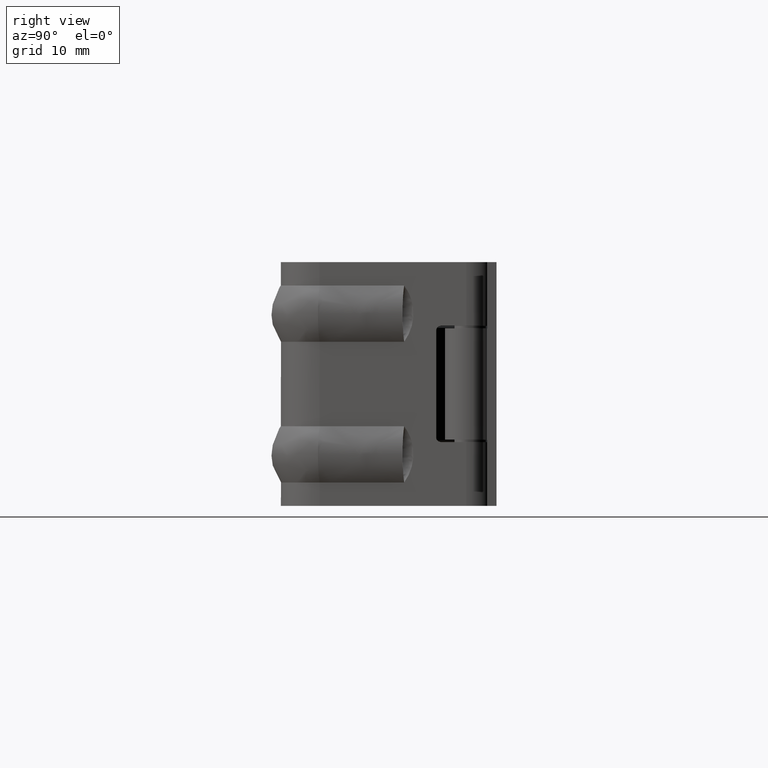
[diagram: clean part render]
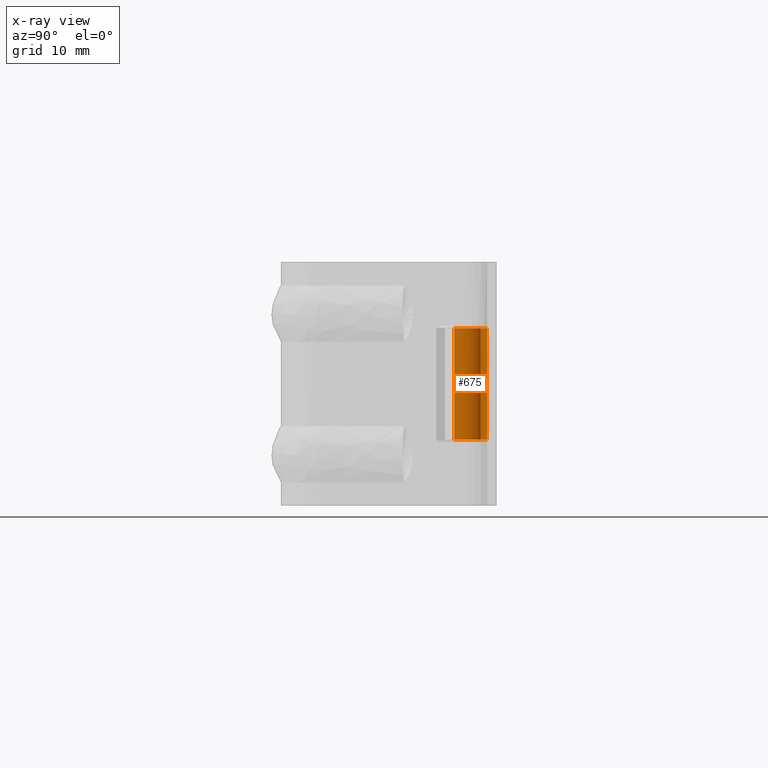
[diagram: x-ray — body ghosted, one internal face saturated and labeled with its STEP entity id]
A machine part, right view, then the same camera in x-ray: the body is ghosted and one INTERNAL B-rep face — a face not visible from any outside direction — is saturated and labeled: STEP entity #675.
In plain terms, the highlighted face is a freeform B-spline surface patch.
Its self-contained STEP definition (entity closure, byte-faithful):
#300=CARTESIAN_POINT('',(1.375561493168372,1.081818181818182,18.950012000000150));
#301=VERTEX_POINT('',#300);
#302=CARTESIAN_POINT('',(0.0,1.750000000000000,18.950012000000150));
#303=VERTEX_POINT('',#302);
#304=CARTESIAN_POINT('',(1.375561493168373,1.081818181818182,18.950012000000150));
#305=CARTESIAN_POINT('',(2.236785801104022,-0.013252149673032,18.950012000000147));
#306=CARTESIAN_POINT('',(1.362646612735052,-1.098041077920899,18.950012000000150));
#307=CARTESIAN_POINT('',(0.488507424366082,-2.182830006168766,18.950012000000147));
#308=CARTESIAN_POINT('',(-0.764630035317140,-1.574115913486332,18.950012000000150));
#309=CARTESIAN_POINT('',(-2.017767495000362,-0.965401820803899,18.950012000000147));
#310=CARTESIAN_POINT('',(-1.705462231859897,0.392299089598051,18.950012000000150));
#311=CARTESIAN_POINT('',(-1.393156968719432,1.750000000000000,18.950012000000147));
#312=CARTESIAN_POINT('',(0.0,1.750000000000000,18.950012000000150));
#320=(BOUNDED_CURVE()B_SPLINE_CURVE(2,(#304,#305,#306,#307,#308,#309,#310,#311,#312),.UNSPECIFIED.,.F.,.U.)B_SPLINE_CURVE_WITH_KNOTS((3,2,2,2,3),(0.0,0.250000000000000,0.500000000000000,0.750000000000000,1.0),.UNSPECIFIED.)CURVE()GEOMETRIC_REPRESENTATION_ITEM()RATIONAL_B_SPLINE_CURVE((1.0,0.782358903682237,1.0,0.782358903682237,1.0,0.782358903682237,1.0,0.782358903682237,1.0))REPRESENTATION_ITEM(''));
#321=EDGE_CURVE('',#301,#303,#320,.T.);
#406=CARTESIAN_POINT('',(0.0,1.750000000000000,7.049988000000000));
#407=VERTEX_POINT('',#406);
#408=CARTESIAN_POINT('',(1.375561493168372,1.081818181818182,7.049988000000000));
#409=VERTEX_POINT('',#408);
#410=CARTESIAN_POINT('',(0.0,1.750000000000000,7.049988000000000));
#411=CARTESIAN_POINT('',(-1.393156968719432,1.750000000000000,7.049988000000000));
#412=CARTESIAN_POINT('',(-1.705462231859897,0.392299089598051,7.049988000000000));
#413=CARTESIAN_POINT('',(-2.017767495000362,-0.965401820803898,7.049988000000000));
#414=CARTESIAN_POINT('',(-0.764630035317140,-1.574115913486332,7.049988000000000));
#415=CARTESIAN_POINT('',(0.488507424366082,-2.182830006168766,7.049988000000000));
#416=CARTESIAN_POINT('',(1.362646612735052,-1.098041077920899,7.049988000000000));
#417=CARTESIAN_POINT('',(2.236785801104022,-0.013252149673032,7.049988000000000));
#418=CARTESIAN_POINT('',(1.375561493168373,1.081818181818182,7.049988000000000));
#426=(BOUNDED_CURVE()B_SPLINE_CURVE(2,(#410,#411,#412,#413,#414,#415,#416,#417,#418),.UNSPECIFIED.,.F.,.U.)B_SPLINE_CURVE_WITH_KNOTS((3,2,2,2,3),(0.0,0.250000000000000,0.500000000000000,0.750000000000000,1.0),.UNSPECIFIED.)CURVE()GEOMETRIC_REPRESENTATION_ITEM()RATIONAL_B_SPLINE_CURVE((1.0,0.782358903682237,1.0,0.782358903682237,1.0,0.782358903682237,1.0,0.782358903682237,1.0))REPRESENTATION_ITEM(''));
#427=EDGE_CURVE('',#407,#409,#426,.T.);
#570=CARTESIAN_POINT('',(0.0,1.750000000000000,18.950012000000150));
#571=CARTESIAN_POINT('',(0.0,1.750000000000000,7.049988000000000));
#572=QUASI_UNIFORM_CURVE('',1,(#570,#571),.UNSPECIFIED.,.F.,.U.);
#573=EDGE_CURVE('',#303,#407,#572,.T.);
#628=CARTESIAN_POINT('',(1.375561493168372,1.081818181818182,18.950012000000150));
#629=CARTESIAN_POINT('',(1.375561493168372,1.081818181818182,7.049988000000000));
#630=QUASI_UNIFORM_CURVE('',1,(#628,#629),.UNSPECIFIED.,.F.,.U.);
#631=EDGE_CURVE('',#301,#409,#630,.T.);
#643=CARTESIAN_POINT('',(0.070734727947228,1.748569872284842,19.247512600000150));
#644=CARTESIAN_POINT('',(0.070734727947228,1.748569872284842,6.745049884999995));
#645=CARTESIAN_POINT('',(-1.364279480518922,1.806620363286168,19.247512600000153));
#646=CARTESIAN_POINT('',(-1.364279480518922,1.806620363286168,6.745049884999995));
#647=CARTESIAN_POINT('',(-1.701171931640582,0.410504639435718,19.247512600000150));
#648=CARTESIAN_POINT('',(-1.701171931640582,0.410504639435718,6.745049884999995));
#649=CARTESIAN_POINT('',(-2.038064382762243,-0.985611084414731,19.247512600000153));
#650=CARTESIAN_POINT('',(-2.038064382762243,-0.985611084414731,6.745049884999995));
#651=CARTESIAN_POINT('',(-0.734499087844348,-1.588398907691585,19.247512600000150));
#652=CARTESIAN_POINT('',(-0.734499087844348,-1.588398907691585,6.745049884999995));
#653=CARTESIAN_POINT('',(0.569066207073546,-2.191186730968438,19.247512600000153));
#654=CARTESIAN_POINT('',(0.569066207073546,-2.191186730968438,6.745049884999995));
#655=CARTESIAN_POINT('',(1.414584604504369,-1.030267148218954,19.247512600000150));
#656=CARTESIAN_POINT('',(1.414584604504369,-1.030267148218954,6.745049884999995));
#657=CARTESIAN_POINT('',(2.260103001935192,0.130652434530531,19.247512600000153));
#658=CARTESIAN_POINT('',(2.260103001935192,0.130652434530531,6.745049884999995));
#659=CARTESIAN_POINT('',(1.286442619867978,1.186408608274237,19.247512600000150));
#660=CARTESIAN_POINT('',(1.286442619867978,1.186408608274237,6.745049884999995));
#668=(BOUNDED_SURFACE()B_SPLINE_SURFACE(1,2,((#643,#645,#647,#649,#651,#653,#655,#657,#659),(#644,#646,#648,#650,#652,#654,#656,#658,#660)),.UNSPECIFIED.,.F.,.F.,.U.)B_SPLINE_SURFACE_WITH_KNOTS((2,2),(3,2,2,2,3),(0.0,12.502462715000160),(0.0,2.504640049201668,5.009280098403337,7.513920147605004,10.018560196806670),.UNSPECIFIED.)GEOMETRIC_REPRESENTATION_ITEM()RATIONAL_B_SPLINE_SURFACE(((1.0,0.773010453362737,1.0,0.773010453362737,1.0,0.773010453362737,1.0,0.773010453362737,1.0),(1.0,0.773010453362737,1.0,0.773010453362737,1.0,0.773010453362737,1.0,0.773010453362737,1.0)))REPRESENTATION_ITEM('')SURFACE());
#669=ORIENTED_EDGE('',*,*,#321,.F.);
#670=ORIENTED_EDGE('',*,*,#631,.T.);
#671=ORIENTED_EDGE('',*,*,#427,.F.);
#672=ORIENTED_EDGE('',*,*,#573,.F.);
#673=EDGE_LOOP('',(#669,#670,#671,#672));
#674=FACE_OUTER_BOUND('',#673,.T.);
#675=ADVANCED_FACE('',(#674),#668,.F.);